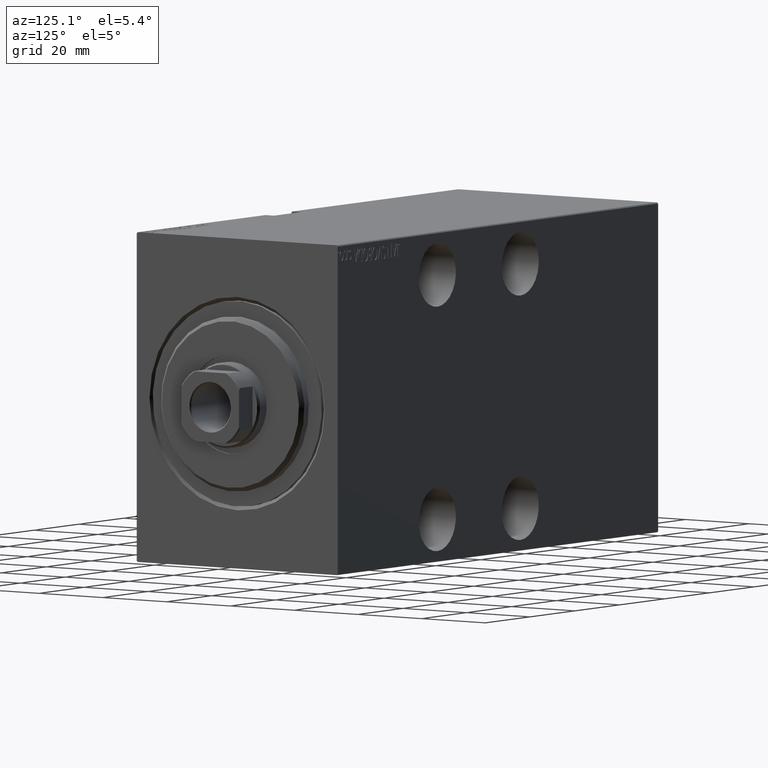
[diagram: clean part render]
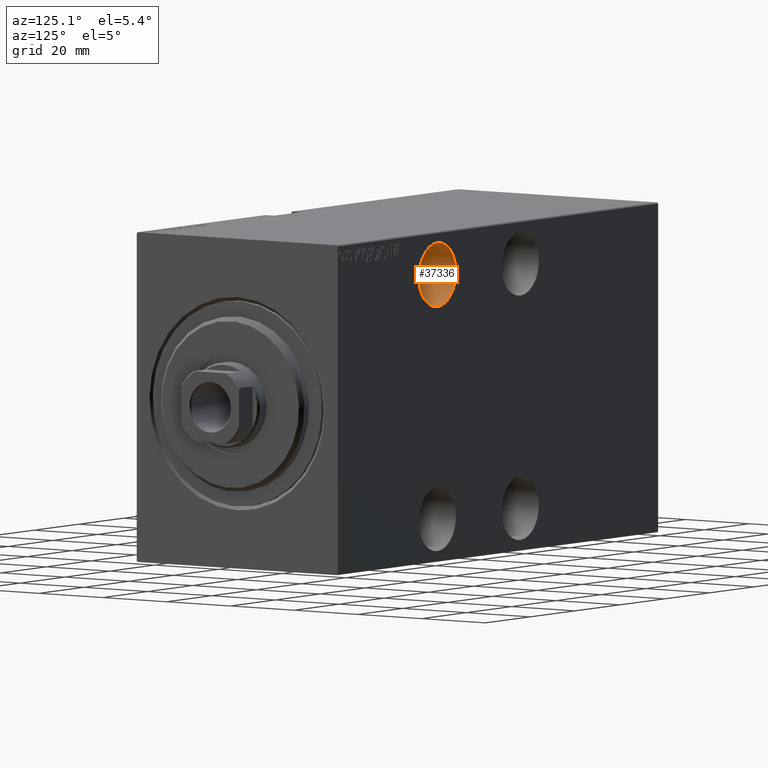
[diagram: same view with one face highlighted and labeled with its STEP entity id]
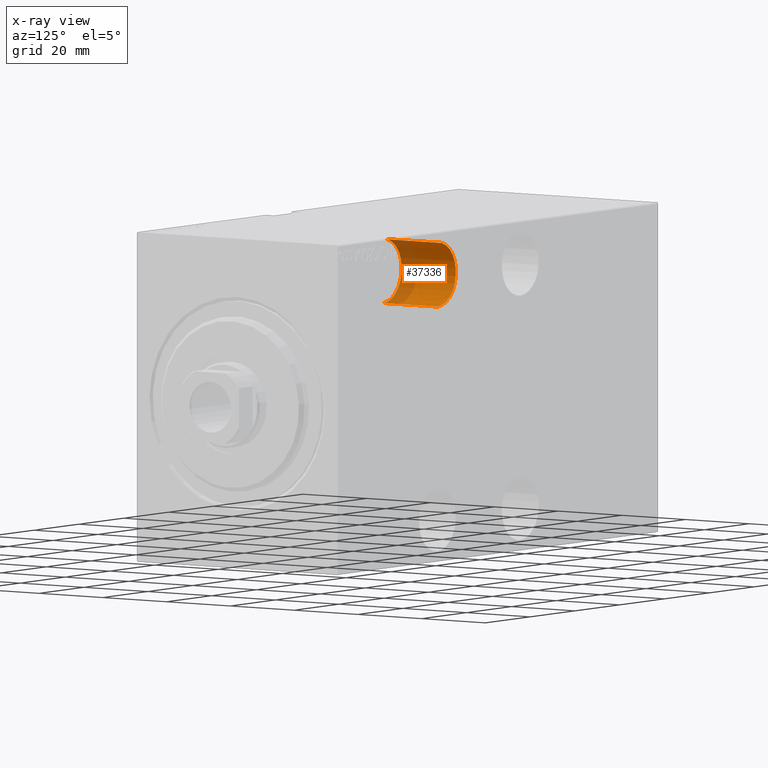
[diagram: x-ray of the same camera — body ghosted, the highlighted face saturated]
A machine part, auxiliary view. The second image highlights one B-rep face of the part: STEP entity #37336.
The next image is the same camera in x-ray: the body ghosted, the highlighted face saturated — about 28% of this face is hidden behind the body in this view.
In plain terms, the highlighted cylindrical surface (edge-blend (fillet) strip) has radius 8.25 mm, axis along (-0, 1, 0).
Its self-contained STEP definition (entity closure, byte-faithful):
#766 = ORIENTED_EDGE ( 'NONE', *, *, #35949, .F. ) ;
#1588 = VECTOR ( 'NONE', #34520, 1000.000000000000000 ) ;
#3752 = CARTESIAN_POINT ( 'NONE',  ( 44.50000000000000000, -31.49999999999999289, 39.74999999999999289 ) ) ;
#5200 = EDGE_LOOP ( 'NONE', ( #766, #34259, #15595, #32022 ) ) ;
#5895 = CARTESIAN_POINT ( 'NONE',  ( 44.50000000000000000, -31.49999999999999289, 31.49999999999999289 ) ) ;
#7270 = VECTOR ( 'NONE', #8839, 1000.000000000000000 ) ;
#7463 = VERTEX_POINT ( 'NONE', #32925 ) ;
#7578 = EDGE_CURVE ( 'NONE', #7463, #14336, #33135, .T. ) ;
#7895 = CARTESIAN_POINT ( 'NONE',  ( 44.50000000000000000, -14.49999999999999289, 39.74999999999999289 ) ) ;
#8362 = VERTEX_POINT ( 'NONE', #3752 ) ;
#8797 = CARTESIAN_POINT ( 'NONE',  ( 44.50000000000000000, -14.49999999999999289, 31.49999999999999289 ) ) ;
#8839 = DIRECTION ( 'NONE',  ( -0.000000000000000000, -1.000000000000000000, -0.000000000000000000 ) ) ;
#11593 = CARTESIAN_POINT ( 'NONE',  ( 44.50000000000000000, -14.49999999999999289, 31.49999999999999289 ) ) ;
#11726 = EDGE_CURVE ( 'NONE', #23020, #8362, #19075, .T. ) ;
#12593 = AXIS2_PLACEMENT_3D ( 'NONE', #11593, #38660, #34899 ) ;
#14209 = CYLINDRICAL_SURFACE ( 'NONE', #27836, 8.249999999999996447 ) ;
#14336 = VERTEX_POINT ( 'NONE', #21768 ) ;
#15595 = ORIENTED_EDGE ( 'NONE', *, *, #32244, .T. ) ;
#18344 = FACE_OUTER_BOUND ( 'NONE', #5200, .T. ) ;
#19000 = DIRECTION ( 'NONE',  ( -0.000000000000000000, -1.000000000000000000, -0.000000000000000000 ) ) ;
#19075 = CIRCLE ( 'NONE', #28295, 8.249999999999996447 ) ;
#21768 = CARTESIAN_POINT ( 'NONE',  ( 44.50000000000000000, -14.49999999999999289, 39.74999999999999289 ) ) ;
#22316 = DIRECTION ( 'NONE',  ( 0.000000000000000000, -1.000000000000000000, 0.000000000000000000 ) ) ;
#23020 = VERTEX_POINT ( 'NONE', #26316 ) ;
#25877 = DIRECTION ( 'NONE',  ( 0.000000000000000000, 0.000000000000000000, -1.000000000000000000 ) ) ;
#26316 = CARTESIAN_POINT ( 'NONE',  ( 44.50000000000000000, -31.49999999999999289, 23.24999999999999645 ) ) ;
#27836 = AXIS2_PLACEMENT_3D ( 'NONE', #8797, #19000, #25877 ) ;
#28295 = AXIS2_PLACEMENT_3D ( 'NONE', #5895, #22316, #35843 ) ;
#32022 = ORIENTED_EDGE ( 'NONE', *, *, #11726, .T. ) ;
#32244 = EDGE_CURVE ( 'NONE', #7463, #23020, #39229, .T. ) ;
#32925 = CARTESIAN_POINT ( 'NONE',  ( 44.50000000000000000, -14.49999999999999289, 23.24999999999999645 ) ) ;
#33135 = CIRCLE ( 'NONE', #12593, 8.249999999999996447 ) ;
#34259 = ORIENTED_EDGE ( 'NONE', *, *, #7578, .F. ) ;
#34520 = DIRECTION ( 'NONE',  ( -0.000000000000000000, -1.000000000000000000, -0.000000000000000000 ) ) ;
#34899 = DIRECTION ( 'NONE',  ( 0.000000000000000000, 0.000000000000000000, -1.000000000000000000 ) ) ;
#35843 = DIRECTION ( 'NONE',  ( 0.000000000000000000, 0.000000000000000000, -1.000000000000000000 ) ) ;
#35949 = EDGE_CURVE ( 'NONE', #14336, #8362, #37414, .T. ) ;
#36735 = CARTESIAN_POINT ( 'NONE',  ( 44.50000000000000000, -14.49999999999999289, 23.24999999999999645 ) ) ;
#37336 = ADVANCED_FACE ( 'NONE', ( #18344 ), #14209, .F. ) ;
#37414 = LINE ( 'NONE', #7895, #1588 ) ;
#38660 = DIRECTION ( 'NONE',  ( 0.000000000000000000, -1.000000000000000000, 0.000000000000000000 ) ) ;
#39229 = LINE ( 'NONE', #36735, #7270 ) ;